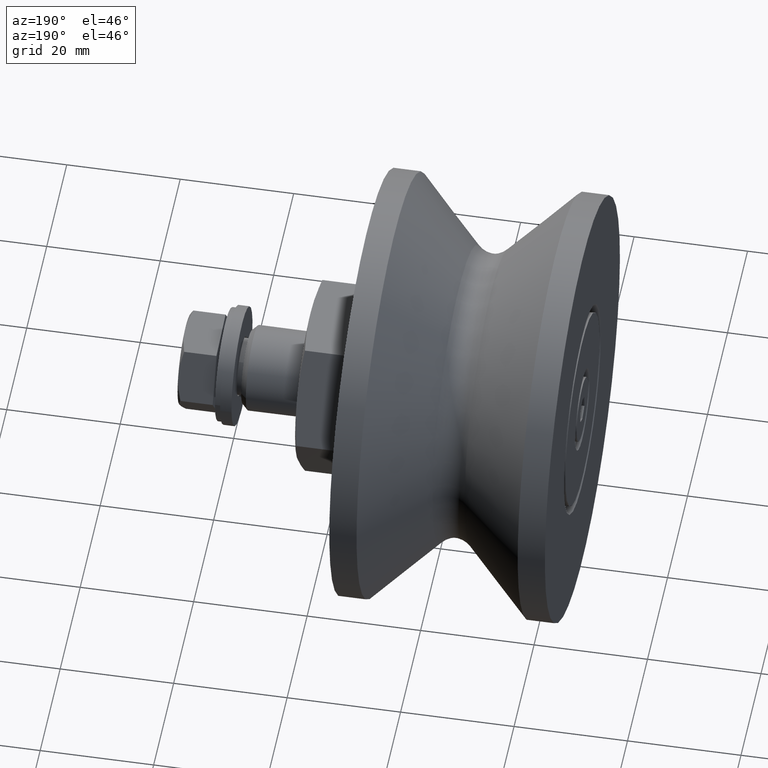
[diagram: clean part render]
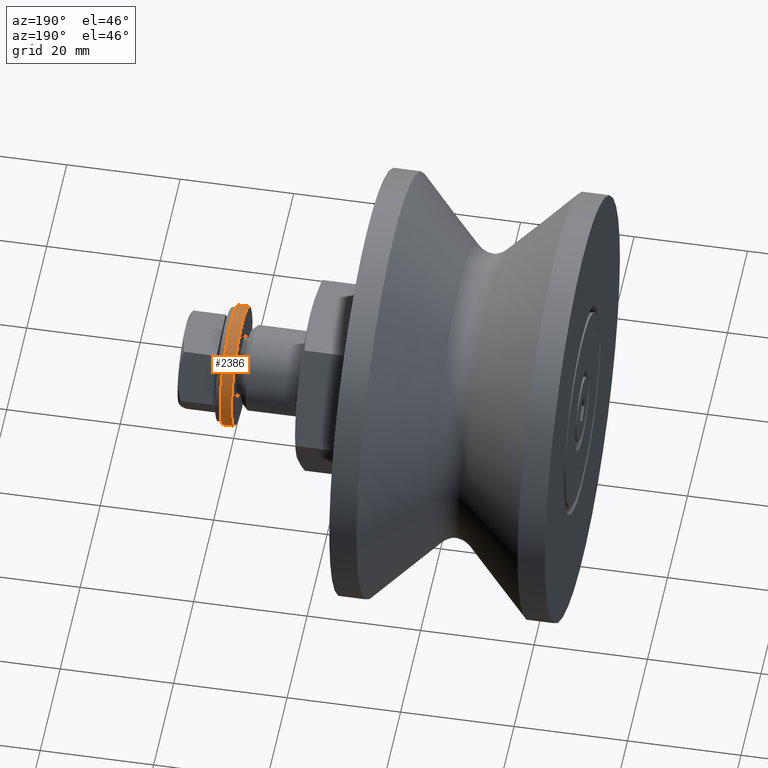
[diagram: same view with one face highlighted and labeled with its STEP entity id]
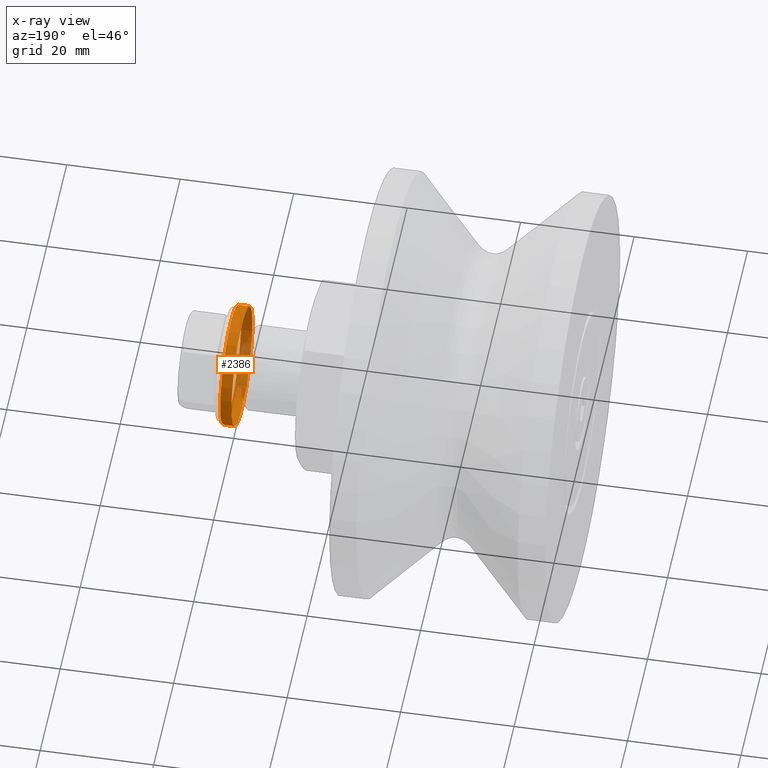
[diagram: x-ray of the same camera — body ghosted, the highlighted face saturated]
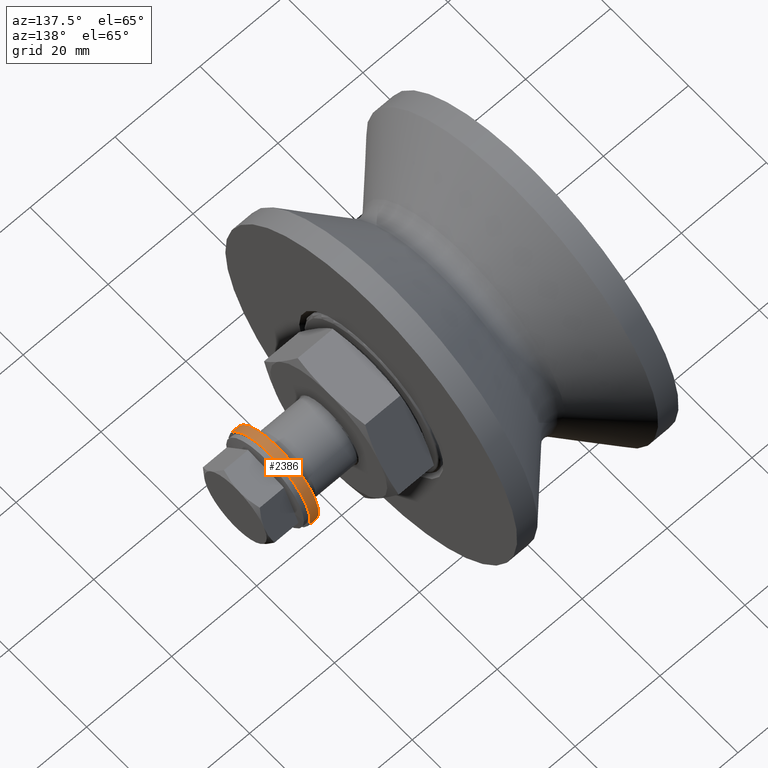
[diagram: same view with one face highlighted and labeled with its STEP entity id]
A machine part, auxiliary view. The second image highlights one B-rep face of the part: STEP entity #2386.
The next image is the same camera in x-ray: the body ghosted, the highlighted face saturated — about 26% of this face is hidden behind the body in this view.
A second angle (auxiliary view) of the same face is appended — the face is thin or edge-on in the first view.
In plain terms, the highlighted cylindrical surface (bore or boss wall) has radius 10.5 mm, axis along (1, 0, 0).
Its self-contained STEP definition (entity closure, byte-faithful):
#394=LINE('',#5169,#482);
#482=VECTOR('',#3591,10.5);
#509=CYLINDRICAL_SURFACE('',#2906,10.5);
#641=FACE_OUTER_BOUND('',#811,.T.);
#811=EDGE_LOOP('',(#2211,#2212,#2213,#2214));
#969=CIRCLE('',#2907,10.5);
#970=CIRCLE('',#2908,10.5);
#1203=VERTEX_POINT('',#5166);
#1204=VERTEX_POINT('',#5168);
#1540=EDGE_CURVE('',#1203,#1203,#969,.T.);
#1541=EDGE_CURVE('',#1203,#1204,#394,.T.);
#1542=EDGE_CURVE('',#1204,#1204,#970,.T.);
#2211=ORIENTED_EDGE('',*,*,#1540,.F.);
#2212=ORIENTED_EDGE('',*,*,#1541,.T.);
#2213=ORIENTED_EDGE('',*,*,#1542,.F.);
#2214=ORIENTED_EDGE('',*,*,#1541,.F.);
#2386=ADVANCED_FACE('',(#641),#509,.T.);
#2906=AXIS2_PLACEMENT_3D('',#5165,#3587,#3588);
#2907=AXIS2_PLACEMENT_3D('',#5167,#3589,#3590);
#2908=AXIS2_PLACEMENT_3D('',#5170,#3592,#3593);
#3587=DIRECTION('center_axis',(1.,0.,0.));
#3588=DIRECTION('ref_axis',(0.,-1.,0.));
#3589=DIRECTION('center_axis',(1.,0.,0.));
#3590=DIRECTION('ref_axis',(0.,-1.,0.));
#3591=DIRECTION('',(-1.,0.,0.));
#3592=DIRECTION('center_axis',(-1.,0.,0.));
#3593=DIRECTION('ref_axis',(0.,-1.,0.));
#5165=CARTESIAN_POINT('Origin',(0.,0.,0.));
#5166=CARTESIAN_POINT('',(2.,10.5,1.28587913910472E-15));
#5167=CARTESIAN_POINT('Origin',(2.,0.,0.));
#5168=CARTESIAN_POINT('',(0.,10.5,1.28587913910472E-15));
#5169=CARTESIAN_POINT('',(0.,10.5,1.28587913910472E-15));
#5170=CARTESIAN_POINT('Origin',(0.,0.,0.));